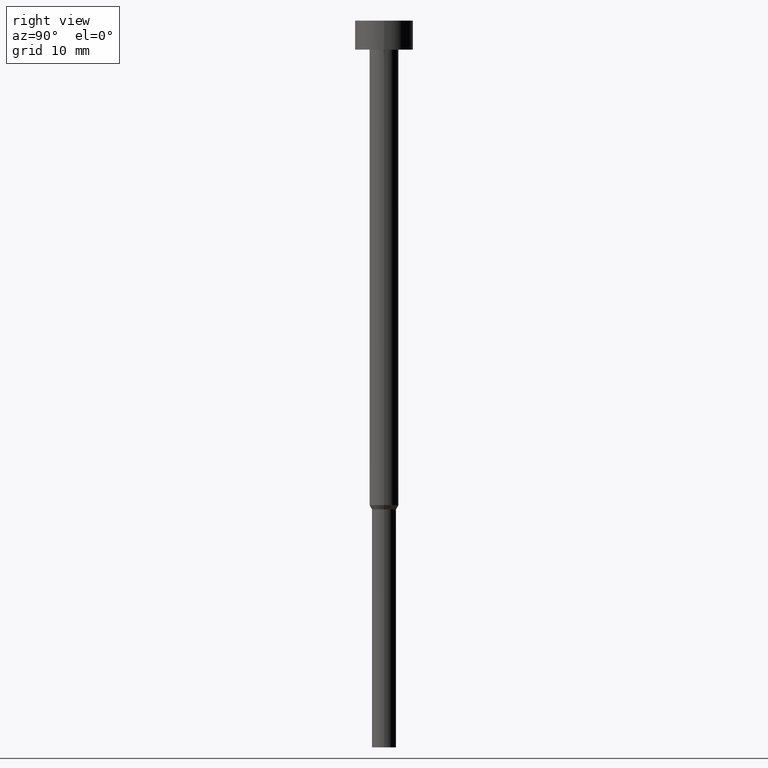
[diagram: clean part render]
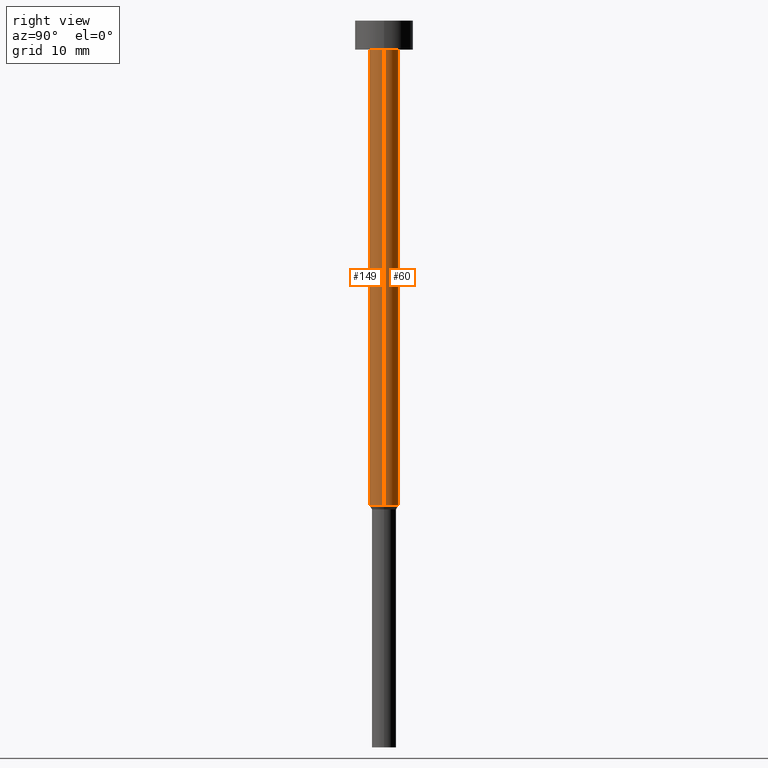
[diagram: same view with one multi-face feature highlighted, each face labeled with its STEP entity id]
A machine part, right view. The highlighted faces form ONE feature: a constant-radius fillet chain: 2 tangent blend faces with common blend radius 1.5 mm. The faces share edges in the B-rep.
Their STEP definitions:
[1] entity #149 (Cylinder):
#33 = FACE_OUTER_BOUND ( 'NONE', #276, .T. ) ;
#42 = CARTESIAN_POINT ( 'NONE',  ( 1.500000000000000000, 0.000000000000000000, -50.00000000000000000 ) ) ;
#52 = EDGE_CURVE ( 'NONE', #75, #332, #200, .T. ) ;
#56 = CARTESIAN_POINT ( 'NONE',  ( -1.500000000000000000, 1.836970198721029934E-16, -3.000000000000000444 ) ) ;
#67 = ORIENTED_EDGE ( 'NONE', *, *, #271, .T. ) ;
#71 = EDGE_CURVE ( 'NONE', #332, #310, #250, .T. ) ;
#75 = VERTEX_POINT ( 'NONE', #105 ) ;
#94 = DIRECTION ( 'NONE',  ( -0.000000000000000000, -0.000000000000000000, 1.000000000000000000 ) ) ;
#97 = AXIS2_PLACEMENT_3D ( 'NONE', #338, #94, #232 ) ;
#104 = LINE ( 'NONE', #320, #284 ) ;
#105 = CARTESIAN_POINT ( 'NONE',  ( -1.500000000000000000, 1.836970198721029934E-16, -50.00000000000000000 ) ) ;
#126 = VECTOR ( 'NONE', #290, 1000.000000000000000 ) ;
#127 = CIRCLE ( 'NONE', #185, 1.500000000000000000 ) ;
#149 = ADVANCED_FACE ( 'NONE', ( #33 ), #221, .T. ) ;
#153 = CARTESIAN_POINT ( 'NONE',  ( 1.500000000000000000, 0.000000000000000000, -3.000000000000000444 ) ) ;
#167 = VERTEX_POINT ( 'NONE', #42 ) ;
#168 = AXIS2_PLACEMENT_3D ( 'NONE', #348, #294, #241 ) ;
#183 = EDGE_CURVE ( 'NONE', #75, #167, #127, .T. ) ;
#185 = AXIS2_PLACEMENT_3D ( 'NONE', #293, #268, #211 ) ;
#200 = LINE ( 'NONE', #314, #126 ) ;
#211 = DIRECTION ( 'NONE',  ( 1.000000000000000000, 0.000000000000000000, 0.000000000000000000 ) ) ;
#221 = CYLINDRICAL_SURFACE ( 'NONE', #97, 1.500000000000000000 ) ;
#232 = DIRECTION ( 'NONE',  ( 1.000000000000000000, 0.000000000000000000, 0.000000000000000000 ) ) ;
#241 = DIRECTION ( 'NONE',  ( 1.000000000000000000, 0.000000000000000000, 0.000000000000000000 ) ) ;
#242 = ORIENTED_EDGE ( 'NONE', *, *, #71, .F. ) ;
#250 = CIRCLE ( 'NONE', #168, 1.500000000000000000 ) ;
#268 = DIRECTION ( 'NONE',  ( -0.000000000000000000, -0.000000000000000000, 1.000000000000000000 ) ) ;
#269 = ORIENTED_EDGE ( 'NONE', *, *, #183, .T. ) ;
#271 = EDGE_CURVE ( 'NONE', #167, #310, #104, .T. ) ;
#272 = DIRECTION ( 'NONE',  ( -0.000000000000000000, -0.000000000000000000, 1.000000000000000000 ) ) ;
#276 = EDGE_LOOP ( 'NONE', ( #337, #269, #67, #242 ) ) ;
#284 = VECTOR ( 'NONE', #272, 1000.000000000000000 ) ;
#290 = DIRECTION ( 'NONE',  ( -0.000000000000000000, -0.000000000000000000, 1.000000000000000000 ) ) ;
#293 = CARTESIAN_POINT ( 'NONE',  ( 0.000000000000000000, 0.000000000000000000, -50.00000000000000000 ) ) ;
#294 = DIRECTION ( 'NONE',  ( -0.000000000000000000, -0.000000000000000000, 1.000000000000000000 ) ) ;
#310 = VERTEX_POINT ( 'NONE', #153 ) ;
#314 = CARTESIAN_POINT ( 'NONE',  ( -1.500000000000000000, 1.836970198721029934E-16, 0.000000000000000000 ) ) ;
#320 = CARTESIAN_POINT ( 'NONE',  ( 1.500000000000000000, 0.000000000000000000, 0.000000000000000000 ) ) ;
#332 = VERTEX_POINT ( 'NONE', #56 ) ;
#337 = ORIENTED_EDGE ( 'NONE', *, *, #52, .F. ) ;
#338 = CARTESIAN_POINT ( 'NONE',  ( 0.000000000000000000, 0.000000000000000000, 0.000000000000000000 ) ) ;
#348 = CARTESIAN_POINT ( 'NONE',  ( 0.000000000000000000, 0.000000000000000000, -3.000000000000000444 ) ) ;
[2] entity #60 (Cylinder):
#18 = DIRECTION ( 'NONE',  ( -0.000000000000000000, -0.000000000000000000, 1.000000000000000000 ) ) ;
#42 = CARTESIAN_POINT ( 'NONE',  ( 1.500000000000000000, 0.000000000000000000, -50.00000000000000000 ) ) ;
#45 = CARTESIAN_POINT ( 'NONE',  ( 0.000000000000000000, 0.000000000000000000, -3.000000000000000444 ) ) ;
#49 = CIRCLE ( 'NONE', #176, 1.500000000000000000 ) ;
#52 = EDGE_CURVE ( 'NONE', #75, #332, #200, .T. ) ;
#54 = ORIENTED_EDGE ( 'NONE', *, *, #191, .F. ) ;
#56 = CARTESIAN_POINT ( 'NONE',  ( -1.500000000000000000, 1.836970198721029934E-16, -3.000000000000000444 ) ) ;
#57 = ORIENTED_EDGE ( 'NONE', *, *, #52, .T. ) ;
#60 = ADVANCED_FACE ( 'NONE', ( #315 ), #150, .T. ) ;
#75 = VERTEX_POINT ( 'NONE', #105 ) ;
#76 = DIRECTION ( 'NONE',  ( 1.000000000000000000, 0.000000000000000000, 0.000000000000000000 ) ) ;
#96 = EDGE_LOOP ( 'NONE', ( #111, #57, #54, #117 ) ) ;
#104 = LINE ( 'NONE', #320, #284 ) ;
#105 = CARTESIAN_POINT ( 'NONE',  ( -1.500000000000000000, 1.836970198721029934E-16, -50.00000000000000000 ) ) ;
#111 = ORIENTED_EDGE ( 'NONE', *, *, #134, .T. ) ;
#117 = ORIENTED_EDGE ( 'NONE', *, *, #271, .F. ) ;
#122 = DIRECTION ( 'NONE',  ( 1.000000000000000000, 0.000000000000000000, 0.000000000000000000 ) ) ;
#126 = VECTOR ( 'NONE', #290, 1000.000000000000000 ) ;
#128 = DIRECTION ( 'NONE',  ( -0.000000000000000000, -0.000000000000000000, 1.000000000000000000 ) ) ;
#134 = EDGE_CURVE ( 'NONE', #167, #75, #49, .T. ) ;
#147 = CIRCLE ( 'NONE', #252, 1.500000000000000000 ) ;
#150 = CYLINDRICAL_SURFACE ( 'NONE', #209, 1.500000000000000000 ) ;
#153 = CARTESIAN_POINT ( 'NONE',  ( 1.500000000000000000, 0.000000000000000000, -3.000000000000000444 ) ) ;
#165 = DIRECTION ( 'NONE',  ( -0.000000000000000000, -0.000000000000000000, 1.000000000000000000 ) ) ;
#167 = VERTEX_POINT ( 'NONE', #42 ) ;
#176 = AXIS2_PLACEMENT_3D ( 'NONE', #278, #165, #309 ) ;
#191 = EDGE_CURVE ( 'NONE', #310, #332, #147, .T. ) ;
#200 = LINE ( 'NONE', #314, #126 ) ;
#209 = AXIS2_PLACEMENT_3D ( 'NONE', #263, #18, #122 ) ;
#252 = AXIS2_PLACEMENT_3D ( 'NONE', #45, #128, #76 ) ;
#263 = CARTESIAN_POINT ( 'NONE',  ( 0.000000000000000000, 0.000000000000000000, 0.000000000000000000 ) ) ;
#271 = EDGE_CURVE ( 'NONE', #167, #310, #104, .T. ) ;
#272 = DIRECTION ( 'NONE',  ( -0.000000000000000000, -0.000000000000000000, 1.000000000000000000 ) ) ;
#278 = CARTESIAN_POINT ( 'NONE',  ( 0.000000000000000000, 0.000000000000000000, -50.00000000000000000 ) ) ;
#284 = VECTOR ( 'NONE', #272, 1000.000000000000000 ) ;
#290 = DIRECTION ( 'NONE',  ( -0.000000000000000000, -0.000000000000000000, 1.000000000000000000 ) ) ;
#309 = DIRECTION ( 'NONE',  ( 1.000000000000000000, 0.000000000000000000, 0.000000000000000000 ) ) ;
#310 = VERTEX_POINT ( 'NONE', #153 ) ;
#314 = CARTESIAN_POINT ( 'NONE',  ( -1.500000000000000000, 1.836970198721029934E-16, 0.000000000000000000 ) ) ;
#315 = FACE_OUTER_BOUND ( 'NONE', #96, .T. ) ;
#320 = CARTESIAN_POINT ( 'NONE',  ( 1.500000000000000000, 0.000000000000000000, 0.000000000000000000 ) ) ;
#332 = VERTEX_POINT ( 'NONE', #56 ) ;